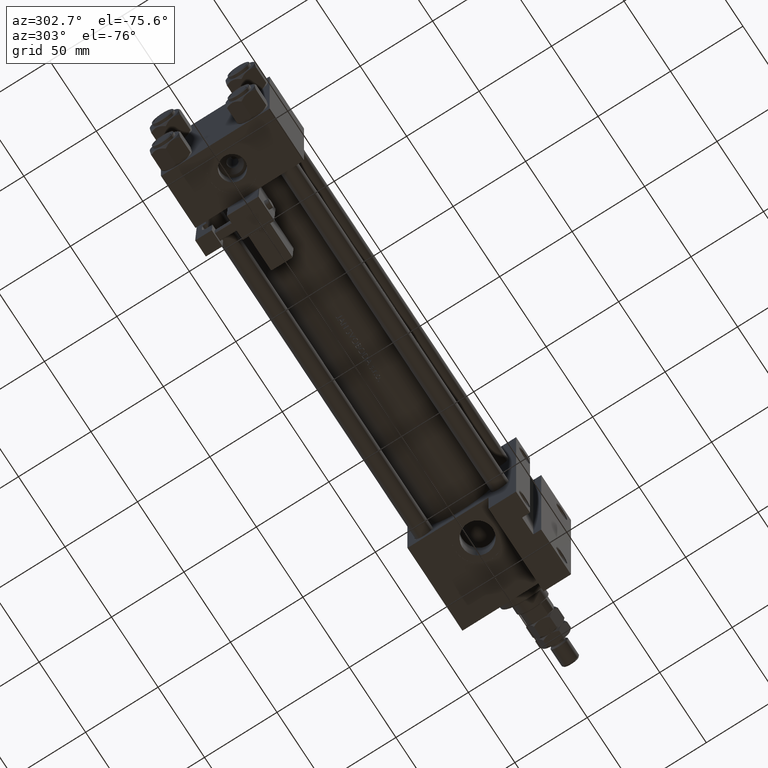
[diagram: clean part render]
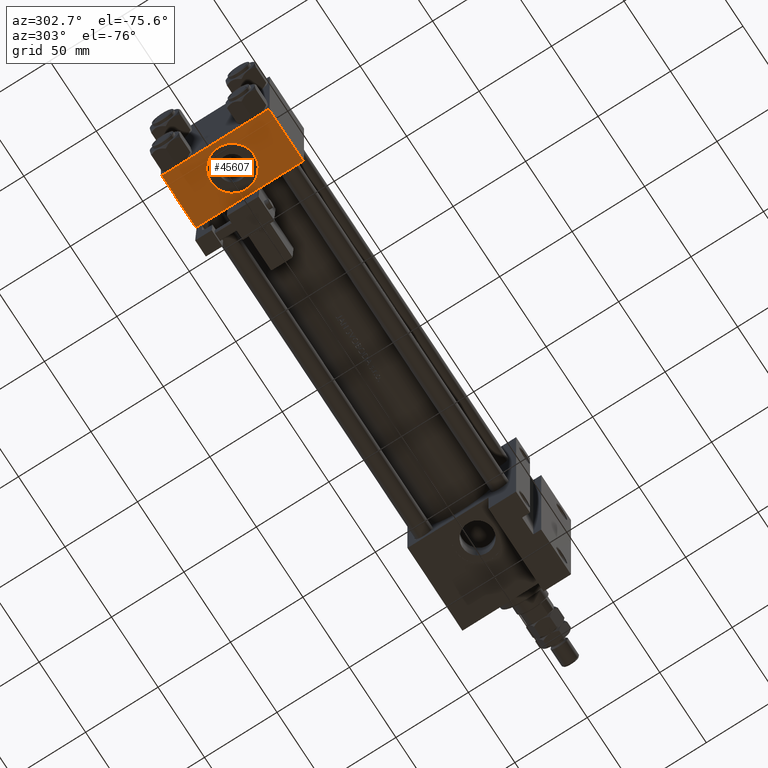
[diagram: same view with one face highlighted and labeled with its STEP entity id]
A machine part, auxiliary view. The second image highlights one B-rep face of the part: STEP entity #45607.
In plain terms, the highlighted planar face has unit normal (0, 0, -1).
Its self-contained STEP definition (entity closure, byte-faithful):
#3200 = ORIENTED_EDGE ( 'NONE', *, *, #24157, .F. ) ;
#4104 = EDGE_LOOP ( 'NONE', ( #21280, #18447 ) ) ;
#7719 = PLANE ( 'NONE',  #37198 ) ;
#9371 = ORIENTED_EDGE ( 'NONE', *, *, #31651, .T. ) ;
#9830 = VERTEX_POINT ( 'NONE', #33216 ) ;
#10082 = CIRCLE ( 'NONE', #42390, 15.00000000000000178 ) ;
#10281 = LINE ( 'NONE', #10540, #27687 ) ;
#10540 = CARTESIAN_POINT ( 'NONE',  ( 37.00000000000000000, 37.49999999999999289, 37.00000000000000000 ) ) ;
#11048 = DIRECTION ( 'NONE',  ( 1.000000000000000000, 0.000000000000000000, 0.000000000000000000 ) ) ;
#13589 = CARTESIAN_POINT ( 'NONE',  ( 0.000000000000000000, 37.49999999999999289, 37.50000000000000000 ) ) ;
#14409 = VECTOR ( 'NONE', #20883, 1000.000000000000000 ) ;
#14858 = CARTESIAN_POINT ( 'NONE',  ( 37.00000000000000000, 37.49999999999999289, 37.00000000000000000 ) ) ;
#16343 = EDGE_LOOP ( 'NONE', ( #25739, #43466, #3200, #9371 ) ) ;
#17965 = VERTEX_POINT ( 'NONE', #49431 ) ;
#18033 = DIRECTION ( 'NONE',  ( 0.000000000000000000, 0.000000000000000000, 1.000000000000000000 ) ) ;
#18119 = DIRECTION ( 'NONE',  ( 0.000000000000000000, 0.000000000000000000, 1.000000000000000000 ) ) ;
#18447 = ORIENTED_EDGE ( 'NONE', *, *, #25736, .F. ) ;
#19348 = VERTEX_POINT ( 'NONE', #20226 ) ;
#19924 = FACE_OUTER_BOUND ( 'NONE', #16343, .T. ) ;
#20127 = LINE ( 'NONE', #50542, #34739 ) ;
#20226 = CARTESIAN_POINT ( 'NONE',  ( 18.50000000000000355, 37.49999999999999289, -15.00000000000000178 ) ) ;
#20883 = DIRECTION ( 'NONE',  ( 0.000000000000000000, 0.000000000000000000, -1.000000000000000000 ) ) ;
#21280 = ORIENTED_EDGE ( 'NONE', *, *, #26603, .F. ) ;
#22179 = DIRECTION ( 'NONE',  ( 0.000000000000000000, 1.000000000000000000, 0.000000000000000000 ) ) ;
#22181 = CARTESIAN_POINT ( 'NONE',  ( 37.00000000000000000, 37.49999999999999289, 37.50000000000000000 ) ) ;
#24157 = EDGE_CURVE ( 'NONE', #9830, #41048, #48172, .T. ) ;
#25736 = EDGE_CURVE ( 'NONE', #19348, #31792, #33248, .T. ) ;
#25739 = ORIENTED_EDGE ( 'NONE', *, *, #32948, .T. ) ;
#26603 = EDGE_CURVE ( 'NONE', #31792, #19348, #10082, .T. ) ;
#27410 = DIRECTION ( 'NONE',  ( -1.000000000000000000, 0.000000000000000000, 0.000000000000000000 ) ) ;
#27687 = VECTOR ( 'NONE', #11048, 1000.000000000000000 ) ;
#27990 = VERTEX_POINT ( 'NONE', #14858 ) ;
#29955 = AXIS2_PLACEMENT_3D ( 'NONE', #30478, #22179, #18033 ) ;
#30478 = CARTESIAN_POINT ( 'NONE',  ( 18.50000000000000000, 37.49999999999999289, 0.000000000000000000 ) ) ;
#31651 = EDGE_CURVE ( 'NONE', #9830, #27990, #10281, .T. ) ;
#31792 = VERTEX_POINT ( 'NONE', #40879 ) ;
#32682 = VECTOR ( 'NONE', #38014, 1000.000000000000000 ) ;
#32948 = EDGE_CURVE ( 'NONE', #27990, #17965, #46838, .T. ) ;
#33216 = CARTESIAN_POINT ( 'NONE',  ( 0.000000000000000000, 37.49999999999999289, 37.00000000000000000 ) ) ;
#33248 = CIRCLE ( 'NONE', #29955, 15.00000000000000178 ) ;
#34739 = VECTOR ( 'NONE', #27410, 1000.000000000000000 ) ;
#35244 = DIRECTION ( 'NONE',  ( 0.000000000000000000, -0.000000000000000000, 1.000000000000000000 ) ) ;
#35361 = CARTESIAN_POINT ( 'NONE',  ( 0.000000000000000000, 37.49999999999999289, -36.99999999999998579 ) ) ;
#35763 = DIRECTION ( 'NONE',  ( -0.000000000000000000, 1.000000000000000000, 0.000000000000000000 ) ) ;
#37198 = AXIS2_PLACEMENT_3D ( 'NONE', #51372, #35763, #35244 ) ;
#38014 = DIRECTION ( 'NONE',  ( 0.000000000000000000, 0.000000000000000000, -1.000000000000000000 ) ) ;
#38100 = DIRECTION ( 'NONE',  ( 0.000000000000000000, 1.000000000000000000, 0.000000000000000000 ) ) ;
#40879 = CARTESIAN_POINT ( 'NONE',  ( 18.50000000000000000, 37.49999999999999289, 15.00000000000000178 ) ) ;
#41048 = VERTEX_POINT ( 'NONE', #35361 ) ;
#42390 = AXIS2_PLACEMENT_3D ( 'NONE', #45405, #38100, #18119 ) ;
#43300 = FACE_BOUND ( 'NONE', #4104, .T. ) ;
#43466 = ORIENTED_EDGE ( 'NONE', *, *, #47020, .T. ) ;
#45405 = CARTESIAN_POINT ( 'NONE',  ( 18.50000000000000000, 37.49999999999999289, 0.000000000000000000 ) ) ;
#45607 = ADVANCED_FACE ( 'NONE', ( #43300, #19924 ), #7719, .T. ) ;
#46838 = LINE ( 'NONE', #22181, #32682 ) ;
#47020 = EDGE_CURVE ( 'NONE', #17965, #41048, #20127, .T. ) ;
#48172 = LINE ( 'NONE', #13589, #14409 ) ;
#49431 = CARTESIAN_POINT ( 'NONE',  ( 37.00000000000000000, 37.49999999999999289, -36.99999999999998579 ) ) ;
#50542 = CARTESIAN_POINT ( 'NONE',  ( 37.00000000000000000, 37.49999999999999289, -36.99999999999998579 ) ) ;
#51372 = CARTESIAN_POINT ( 'NONE',  ( 37.00000000000000000, 37.49999999999999289, 37.50000000000000000 ) ) ;